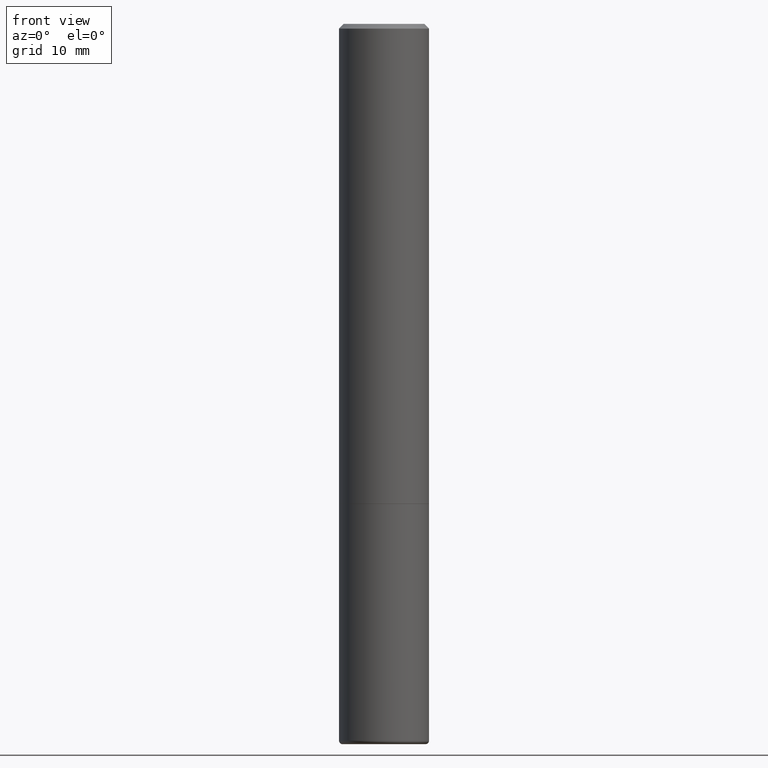
[diagram: clean part render]
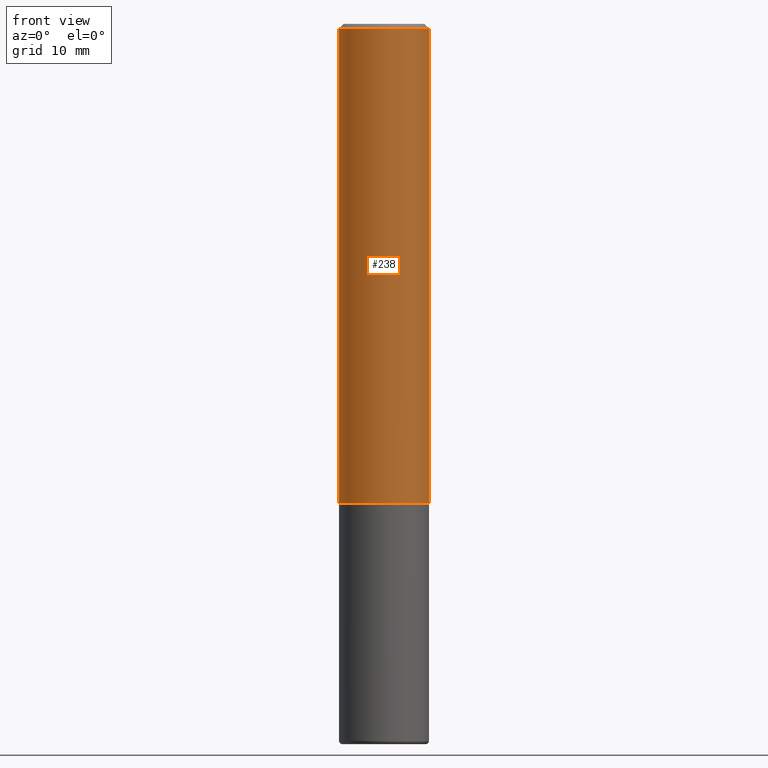
[diagram: same view with one face highlighted and labeled with its STEP entity id]
A machine part, front view. The second image highlights one B-rep face of the part: STEP entity #238.
In plain terms, the highlighted cylindrical surface (partial cylindrical patch) has radius 4.7625 mm, axis along (-0, 0, 1).
Its self-contained STEP definition (entity closure, byte-faithful):
#11 = CARTESIAN_POINT ( 'NONE',  ( 0.1874999999999996392, -1.309305502066172642E-15, 9.142831454617361395E-30 ) ) ;
#17 = CARTESIAN_POINT ( 'NONE',  ( -0.1874999999999992228, 1.239475875289306582E-15, -0.02000000000000008021 ) ) ;
#18 = DIRECTION ( 'NONE',  ( 1.000000000000000000, -6.982962677686267499E-15, 0.000000000000000000 ) ) ;
#25 = FACE_OUTER_BOUND ( 'NONE', #288, .T. ) ;
#27 = ORIENTED_EDGE ( 'NONE', *, *, #324, .F. ) ;
#51 = LINE ( 'NONE', #11, #321 ) ;
#58 = VERTEX_POINT ( 'NONE', #103 ) ;
#103 = CARTESIAN_POINT ( 'NONE',  ( -0.1875000000000000278, -2.192382782011959991E-15, -1.999000000000000110 ) ) ;
#104 = VERTEX_POINT ( 'NONE', #443 ) ;
#130 = DIRECTION ( 'NONE',  ( -2.445468806185136877E-29, 3.491481338843145188E-15, 1.000000000000000000 ) ) ;
#137 = ORIENTED_EDGE ( 'NONE', *, *, #184, .T. ) ;
#151 = EDGE_CURVE ( 'NONE', #104, #263, #51, .T. ) ;
#167 = AXIS2_PLACEMENT_3D ( 'NONE', #202, #245, #330 ) ;
#177 = CIRCLE ( 'NONE', #167, 0.1875000000000000278 ) ;
#184 = EDGE_CURVE ( 'NONE', #58, #104, #177, .T. ) ;
#202 = CARTESIAN_POINT ( 'NONE',  ( 4.888492143564088712E-29, -6.979471196347448158E-15, -1.999000000000000110 ) ) ;
#205 = DIRECTION ( 'NONE',  ( 1.000000000000000000, -6.982962677686267499E-15, 4.876176775795935232E-29 ) ) ;
#214 = EDGE_CURVE ( 'NONE', #377, #263, #281, .T. ) ;
#238 = ADVANCED_FACE ( 'NONE', ( #25 ), #258, .T. ) ;
#245 = DIRECTION ( 'NONE',  ( -2.445468806185136597E-29, 3.491481338843145583E-15, 1.000000000000000000 ) ) ;
#258 = CYLINDRICAL_SURFACE ( 'NONE', #471, 0.1874999999999996392 ) ;
#263 = VERTEX_POINT ( 'NONE', #406 ) ;
#281 = CIRCLE ( 'NONE', #460, 0.1874999999999992228 ) ;
#284 = DIRECTION ( 'NONE',  ( -2.445468806185136877E-29, 3.491481338843145188E-15, 1.000000000000000000 ) ) ;
#288 = EDGE_LOOP ( 'NONE', ( #27, #137, #472, #412 ) ) ;
#296 = LINE ( 'NONE', #398, #454 ) ;
#321 = VECTOR ( 'NONE', #284, 39.37007874015748143 ) ;
#324 = EDGE_CURVE ( 'NONE', #58, #377, #296, .T. ) ;
#330 = DIRECTION ( 'NONE',  ( 1.000000000000000000, -6.982962677686266711E-15, 0.000000000000000000 ) ) ;
#342 = CARTESIAN_POINT ( 'NONE',  ( 0.000000000000000000, 0.000000000000000000, 0.000000000000000000 ) ) ;
#372 = DIRECTION ( 'NONE',  ( -2.445468806185136597E-29, 3.491481338843145583E-15, 1.000000000000000000 ) ) ;
#374 = DIRECTION ( 'NONE',  ( -2.445468806185136597E-29, 3.491481338843145583E-15, 1.000000000000000000 ) ) ;
#377 = VERTEX_POINT ( 'NONE', #17 ) ;
#398 = CARTESIAN_POINT ( 'NONE',  ( -0.1874999999999996392, 1.332267629550185285E-15, -9.223003294227931175E-30 ) ) ;
#406 = CARTESIAN_POINT ( 'NONE',  ( 0.1874999999999992228, -1.356173001359019944E-15, -0.02000000000000008021 ) ) ;
#412 = ORIENTED_EDGE ( 'NONE', *, *, #214, .F. ) ;
#434 = CARTESIAN_POINT ( 'NONE',  ( 4.890937612370293302E-31, -6.982962677686318726E-17, -0.02000000000000008021 ) ) ;
#443 = CARTESIAN_POINT ( 'NONE',  ( 0.1875000000000000278, -8.288776698413623955E-15, -1.999000000000000110 ) ) ;
#454 = VECTOR ( 'NONE', #130, 39.37007874015748143 ) ;
#460 = AXIS2_PLACEMENT_3D ( 'NONE', #434, #372, #18 ) ;
#471 = AXIS2_PLACEMENT_3D ( 'NONE', #342, #374, #205 ) ;
#472 = ORIENTED_EDGE ( 'NONE', *, *, #151, .T. ) ;